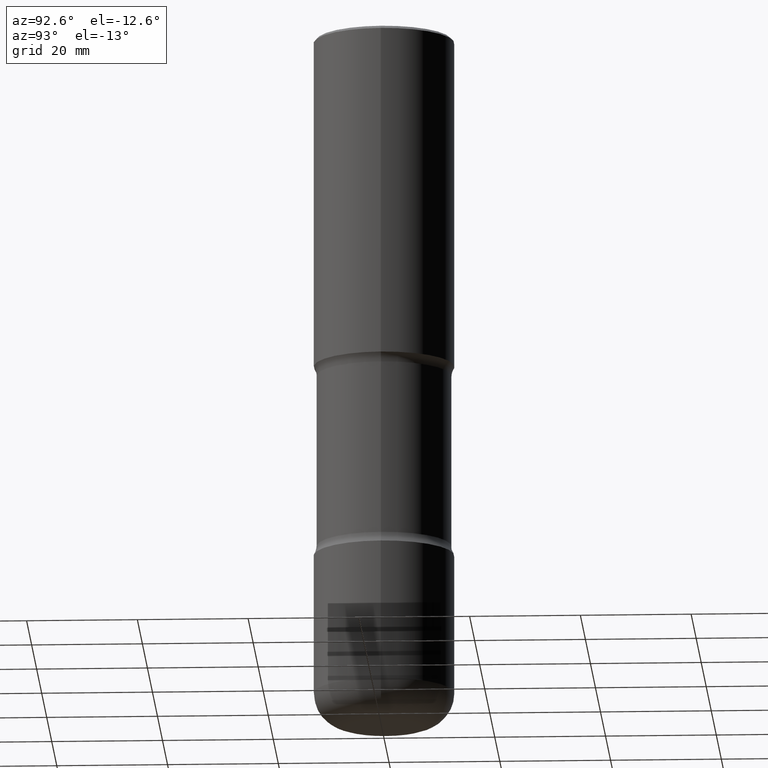
[diagram: clean part render]
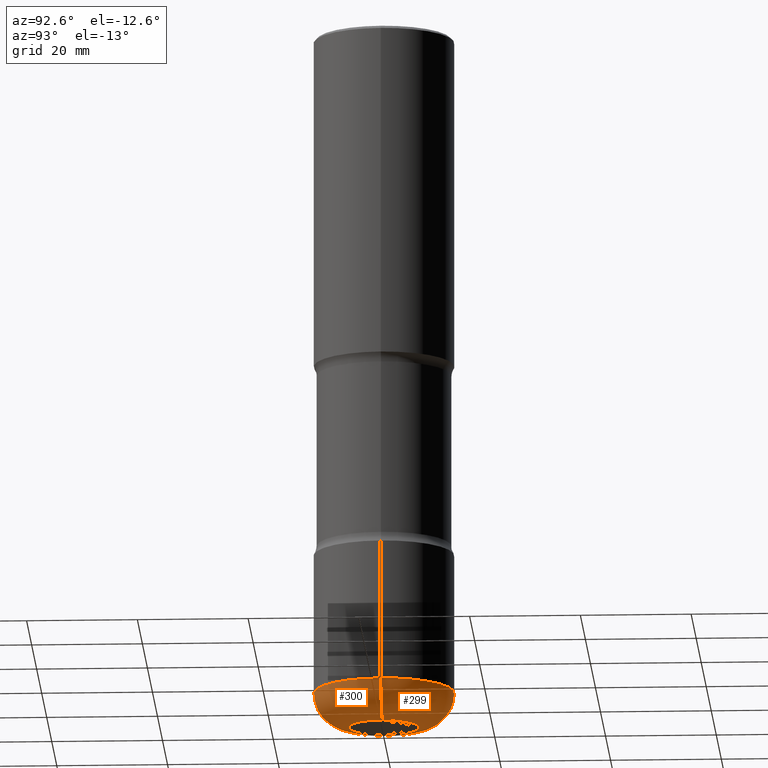
[diagram: same view with one multi-face feature highlighted, each face labeled with its STEP entity id]
A machine part, auxiliary view. The highlighted faces form ONE feature: a constant-radius fillet chain: 2 tangent blend faces with common blend radius 6.35 mm. The faces share edges in the B-rep.
Their STEP definitions:
[1] entity #299 (Torus):
#4 = DIRECTION ( 'NONE',  ( 7.105427357601001859E-15, 1.000000000000000000, -3.491481338843145583E-15 ) ) ;
#46 = CARTESIAN_POINT ( 'NONE',  ( 0.4999999999999999445, -2.007601769834807675E-14, -4.750000000000000000 ) ) ;
#48 = CIRCLE ( 'NONE', #643, 0.2499999999999998612 ) ;
#55 = VERTEX_POINT ( 'NONE', #770 ) ;
#73 = DIRECTION ( 'NONE',  ( -6.982962677686266711E-15, -1.000000000000000000, 3.491481338843145583E-15 ) ) ;
#114 = VERTEX_POINT ( 'NONE', #258 ) ;
#115 = CARTESIAN_POINT ( 'NONE',  ( 1.161597682937940108E-28, -1.658453635950494339E-14, -4.750000000000000000 ) ) ;
#155 = EDGE_CURVE ( 'NONE', #256, #114, #697, .T. ) ;
#161 = AXIS2_PLACEMENT_3D ( 'NONE', #115, #556, #363 ) ;
#169 = DIRECTION ( 'NONE',  ( 1.000000000000000000, -6.982962677686269077E-15, 4.883557194083114022E-29 ) ) ;
#177 = ORIENTED_EDGE ( 'NONE', *, *, #155, .T. ) ;
#192 = CIRCLE ( 'NONE', #161, 0.5000000000000000000 ) ;
#229 = CARTESIAN_POINT ( 'NONE',  ( 1.161597682937940108E-28, -1.658453635950494339E-14, -4.750000000000000000 ) ) ;
#233 = TOROIDAL_SURFACE ( 'NONE', #545, 0.2500000000000000000, 0.2499999999999998890 ) ;
#242 = CARTESIAN_POINT ( 'NONE',  ( 0.2500000000000000000, -1.833027702892651007E-14, -4.750000000000000000 ) ) ;
#256 = VERTEX_POINT ( 'NONE', #591 ) ;
#258 = CARTESIAN_POINT ( 'NONE',  ( -0.4999999999999999445, -1.303182268070444246E-14, -4.750000000000000000 ) ) ;
#274 = FACE_OUTER_BOUND ( 'NONE', #796, .T. ) ;
#299 = ADVANCED_FACE ( 'NONE', ( #274 ), #233, .T. ) ;
#331 = DIRECTION ( 'NONE',  ( -1.000000000000000000, 7.105427357601000281E-15, 0.000000000000000000 ) ) ;
#334 = CIRCLE ( 'NONE', #506, 0.2500000000000000555 ) ;
#341 = DIRECTION ( 'NONE',  ( 1.000000000000000000, -6.982962677686269077E-15, 0.000000000000000000 ) ) ;
#358 = AXIS2_PLACEMENT_3D ( 'NONE', #387, #4, #331 ) ;
#363 = DIRECTION ( 'NONE',  ( 1.000000000000000000, -6.982962677686266711E-15, 0.000000000000000000 ) ) ;
#376 = DIRECTION ( 'NONE',  ( 1.000000000000000000, -6.982962677686266711E-15, 0.000000000000000000 ) ) ;
#385 = EDGE_CURVE ( 'NONE', #55, #503, #48, .T. ) ;
#387 = CARTESIAN_POINT ( 'NONE',  ( -0.2500000000000000000, -1.480817952010469293E-14, -4.750000000000000000 ) ) ;
#400 = DIRECTION ( 'NONE',  ( -2.445468806185136597E-29, 3.491481338843145583E-15, 1.000000000000000000 ) ) ;
#450 = EDGE_CURVE ( 'NONE', #503, #114, #192, .T. ) ;
#454 = ORIENTED_EDGE ( 'NONE', *, *, #716, .T. ) ;
#469 = ORIENTED_EDGE ( 'NONE', *, *, #385, .F. ) ;
#503 = VERTEX_POINT ( 'NONE', #46 ) ;
#506 = AXIS2_PLACEMENT_3D ( 'NONE', #696, #400, #341 ) ;
#545 = AXIS2_PLACEMENT_3D ( 'NONE', #229, #601, #169 ) ;
#556 = DIRECTION ( 'NONE',  ( -2.445468806185136597E-29, 3.491481338843145583E-15, 1.000000000000000000 ) ) ;
#591 = CARTESIAN_POINT ( 'NONE',  ( -0.2500000000000000555, -1.435643626775996094E-14, -5.000000000000000000 ) ) ;
#601 = DIRECTION ( 'NONE',  ( -2.445468806185136597E-29, 3.491481338843145583E-15, 1.000000000000000000 ) ) ;
#640 = ORIENTED_EDGE ( 'NONE', *, *, #450, .F. ) ;
#643 = AXIS2_PLACEMENT_3D ( 'NONE', #242, #73, #376 ) ;
#696 = CARTESIAN_POINT ( 'NONE',  ( 1.222734403092568523E-28, -1.745740669421572989E-14, -5.000000000000000000 ) ) ;
#697 = CIRCLE ( 'NONE', #358, 0.2499999999999998612 ) ;
#716 = EDGE_CURVE ( 'NONE', #55, #256, #334, .T. ) ;
#770 = CARTESIAN_POINT ( 'NONE',  ( 0.2500000000000000555, -1.920314736363729656E-14, -5.000000000000000000 ) ) ;
#796 = EDGE_LOOP ( 'NONE', ( #454, #177, #640, #469 ) ) ;
[2] entity #300 (Torus):
#4 = DIRECTION ( 'NONE',  ( 7.105427357601001859E-15, 1.000000000000000000, -3.491481338843145583E-15 ) ) ;
#26 = ORIENTED_EDGE ( 'NONE', *, *, #155, .F. ) ;
#30 = CARTESIAN_POINT ( 'NONE',  ( 1.161597682937940108E-28, -1.658453635950494339E-14, -4.750000000000000000 ) ) ;
#36 = CIRCLE ( 'NONE', #765, 0.2500000000000000555 ) ;
#46 = CARTESIAN_POINT ( 'NONE',  ( 0.4999999999999999445, -2.007601769834807675E-14, -4.750000000000000000 ) ) ;
#48 = CIRCLE ( 'NONE', #643, 0.2499999999999998612 ) ;
#55 = VERTEX_POINT ( 'NONE', #770 ) ;
#58 = CIRCLE ( 'NONE', #382, 0.5000000000000000000 ) ;
#73 = DIRECTION ( 'NONE',  ( -6.982962677686266711E-15, -1.000000000000000000, 3.491481338843145583E-15 ) ) ;
#95 = ORIENTED_EDGE ( 'NONE', *, *, #385, .T. ) ;
#112 = DIRECTION ( 'NONE',  ( 1.000000000000000000, -6.982962677686269077E-15, 4.883557194083114022E-29 ) ) ;
#114 = VERTEX_POINT ( 'NONE', #258 ) ;
#125 = ORIENTED_EDGE ( 'NONE', *, *, #688, .T. ) ;
#155 = EDGE_CURVE ( 'NONE', #256, #114, #697, .T. ) ;
#191 = TOROIDAL_SURFACE ( 'NONE', #642, 0.2500000000000000000, 0.2499999999999998890 ) ;
#212 = CARTESIAN_POINT ( 'NONE',  ( 1.222734403092568523E-28, -1.745740669421572989E-14, -5.000000000000000000 ) ) ;
#242 = CARTESIAN_POINT ( 'NONE',  ( 0.2500000000000000000, -1.833027702892651007E-14, -4.750000000000000000 ) ) ;
#256 = VERTEX_POINT ( 'NONE', #591 ) ;
#258 = CARTESIAN_POINT ( 'NONE',  ( -0.4999999999999999445, -1.303182268070444246E-14, -4.750000000000000000 ) ) ;
#280 = DIRECTION ( 'NONE',  ( -2.445468806185136597E-29, 3.491481338843145583E-15, 1.000000000000000000 ) ) ;
#295 = DIRECTION ( 'NONE',  ( -2.445468806185136597E-29, 3.491481338843145583E-15, 1.000000000000000000 ) ) ;
#300 = ADVANCED_FACE ( 'NONE', ( #493 ), #191, .T. ) ;
#321 = ORIENTED_EDGE ( 'NONE', *, *, #429, .F. ) ;
#331 = DIRECTION ( 'NONE',  ( -1.000000000000000000, 7.105427357601000281E-15, 0.000000000000000000 ) ) ;
#357 = CARTESIAN_POINT ( 'NONE',  ( 1.161597682937940108E-28, -1.658453635950494339E-14, -4.750000000000000000 ) ) ;
#358 = AXIS2_PLACEMENT_3D ( 'NONE', #387, #4, #331 ) ;
#376 = DIRECTION ( 'NONE',  ( 1.000000000000000000, -6.982962677686266711E-15, 0.000000000000000000 ) ) ;
#382 = AXIS2_PLACEMENT_3D ( 'NONE', #30, #295, #715 ) ;
#385 = EDGE_CURVE ( 'NONE', #55, #503, #48, .T. ) ;
#387 = CARTESIAN_POINT ( 'NONE',  ( -0.2500000000000000000, -1.480817952010469293E-14, -4.750000000000000000 ) ) ;
#405 = EDGE_LOOP ( 'NONE', ( #26, #125, #95, #321 ) ) ;
#429 = EDGE_CURVE ( 'NONE', #114, #503, #58, .T. ) ;
#475 = DIRECTION ( 'NONE',  ( 1.000000000000000000, -6.982962677686269077E-15, 0.000000000000000000 ) ) ;
#489 = DIRECTION ( 'NONE',  ( -2.445468806185136597E-29, 3.491481338843145583E-15, 1.000000000000000000 ) ) ;
#493 = FACE_OUTER_BOUND ( 'NONE', #405, .T. ) ;
#503 = VERTEX_POINT ( 'NONE', #46 ) ;
#591 = CARTESIAN_POINT ( 'NONE',  ( -0.2500000000000000555, -1.435643626775996094E-14, -5.000000000000000000 ) ) ;
#642 = AXIS2_PLACEMENT_3D ( 'NONE', #357, #489, #112 ) ;
#643 = AXIS2_PLACEMENT_3D ( 'NONE', #242, #73, #376 ) ;
#688 = EDGE_CURVE ( 'NONE', #256, #55, #36, .T. ) ;
#697 = CIRCLE ( 'NONE', #358, 0.2499999999999998612 ) ;
#715 = DIRECTION ( 'NONE',  ( 1.000000000000000000, -6.982962677686266711E-15, 0.000000000000000000 ) ) ;
#765 = AXIS2_PLACEMENT_3D ( 'NONE', #212, #280, #475 ) ;
#770 = CARTESIAN_POINT ( 'NONE',  ( 0.2500000000000000555, -1.920314736363729656E-14, -5.000000000000000000 ) ) ;